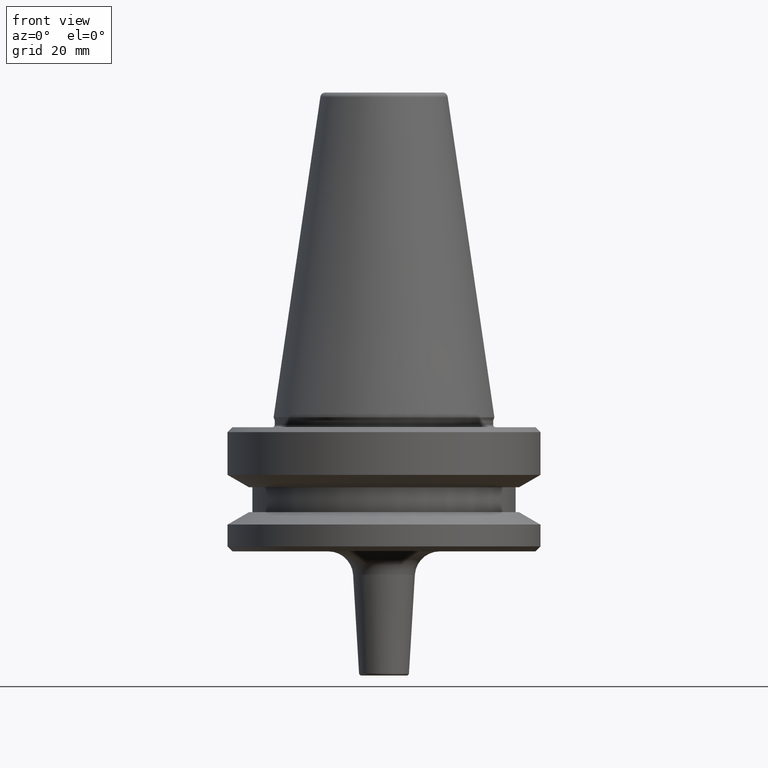
[diagram: clean part render]
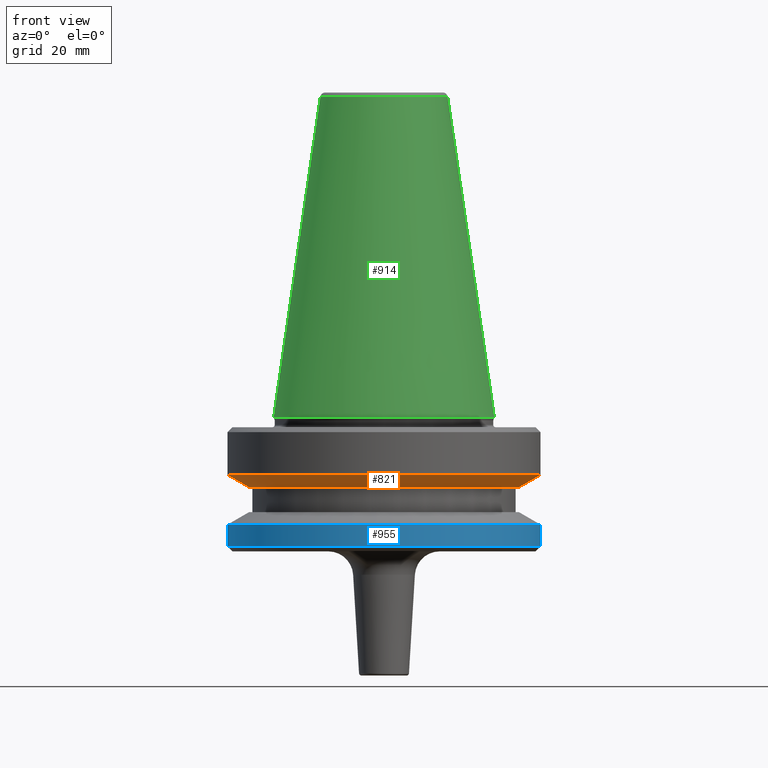
[diagram: same view with three faces highlighted in distinct colors, each labeled with its STEP entity id]
A machine part, front view with three faces highlighted in distinct colors.
Their STEP definitions:

[orange] entity #821 — the highlighted conical surface has half-angle 60 deg.
#3 = DIRECTION ( 'NONE',  ( -0.0000000000000000000, -0.0000000000000000000, 1.000000000000000000 ) ) ;
#22 = CARTESIAN_POINT ( 'NONE',  ( 0.0000000000000000000, 0.0000000000000000000, -76.99985799368391800 ) ) ;
#33 = AXIS2_PLACEMENT_3D ( 'NONE', #22, #614, #105 ) ;
#41 = ORIENTED_EDGE ( 'NONE', *, *, #916, .F. ) ;
#43 = DIRECTION ( 'NONE',  ( -0.8660254037844383700, 1.060575238724906500E-016, 0.5000000000000003300 ) ) ;
#89 = CONICAL_SURFACE ( 'NONE', #844, 31.50000000000008500, 1.047197551196597400 ) ;
#90 = VERTEX_POINT ( 'NONE', #812 ) ;
#103 = CARTESIAN_POINT ( 'NONE',  ( 27.16962701892322600, 0.0000000000000000000, -79.50000000000012800 ) ) ;
#105 = DIRECTION ( 'NONE',  ( 1.000000000000000000, 0.0000000000000000000, 0.0000000000000000000 ) ) ;
#176 = DIRECTION ( 'NONE',  ( 1.000000000000000000, 0.0000000000000000000, 0.0000000000000000000 ) ) ;
#181 = DIRECTION ( 'NONE',  ( 0.8660254037844383700, 0.0000000000000000000, 0.5000000000000003300 ) ) ;
#190 = EDGE_CURVE ( 'NONE', #536, #806, #229, .T. ) ;
#217 = EDGE_CURVE ( 'NONE', #287, #90, #1034, .T. ) ;
#229 = CIRCLE ( 'NONE', #444, 27.16962701892322600 ) ;
#239 = EDGE_CURVE ( 'NONE', #806, #90, #573, .T. ) ;
#272 = VECTOR ( 'NONE', #43, 1000.000000000000100 ) ;
#287 = VERTEX_POINT ( 'NONE', #434 ) ;
#322 = EDGE_LOOP ( 'NONE', ( #41, #795, #640, #891 ) ) ;
#357 = VECTOR ( 'NONE', #181, 1000.000000000000100 ) ;
#434 = CARTESIAN_POINT ( 'NONE',  ( -31.50000000000008500, 3.857637417314172900E-015, -76.99985799368391800 ) ) ;
#444 = AXIS2_PLACEMENT_3D ( 'NONE', #498, #3, #596 ) ;
#457 = CARTESIAN_POINT ( 'NONE',  ( -27.16962701892322600, 3.592478546794674900E-015, -79.50000000000012800 ) ) ;
#470 = FACE_OUTER_BOUND ( 'NONE', #322, .T. ) ;
#498 = CARTESIAN_POINT ( 'NONE',  ( 0.0000000000000000000, 0.0000000000000000000, -79.50000000000012800 ) ) ;
#536 = VERTEX_POINT ( 'NONE', #457 ) ;
#541 = CARTESIAN_POINT ( 'NONE',  ( -31.50000000000008500, 3.857637417314172900E-015, -76.99985799368391800 ) ) ;
#573 = LINE ( 'NONE', #673, #357 ) ;
#596 = DIRECTION ( 'NONE',  ( 1.000000000000000000, 0.0000000000000000000, 0.0000000000000000000 ) ) ;
#597 = CARTESIAN_POINT ( 'NONE',  ( 0.0000000000000000000, 0.0000000000000000000, -76.99985799368391800 ) ) ;
#614 = DIRECTION ( 'NONE',  ( -0.0000000000000000000, -0.0000000000000000000, 1.000000000000000000 ) ) ;
#640 = ORIENTED_EDGE ( 'NONE', *, *, #239, .T. ) ;
#667 = DIRECTION ( 'NONE',  ( -0.0000000000000000000, -0.0000000000000000000, 1.000000000000000000 ) ) ;
#673 = CARTESIAN_POINT ( 'NONE',  ( 31.50000000000008500, 0.0000000000000000000, -76.99985799368391800 ) ) ;
#795 = ORIENTED_EDGE ( 'NONE', *, *, #190, .T. ) ;
#806 = VERTEX_POINT ( 'NONE', #103 ) ;
#812 = CARTESIAN_POINT ( 'NONE',  ( 31.50000000000008500, 0.0000000000000000000, -76.99985799368391800 ) ) ;
#821 = ADVANCED_FACE ( 'NONE', ( #470 ), #89, .T. ) ;
#844 = AXIS2_PLACEMENT_3D ( 'NONE', #597, #667, #176 ) ;
#891 = ORIENTED_EDGE ( 'NONE', *, *, #217, .F. ) ;
#903 = LINE ( 'NONE', #541, #272 ) ;
#916 = EDGE_CURVE ( 'NONE', #536, #287, #903, .T. ) ;
#1034 = CIRCLE ( 'NONE', #33, 31.50000000000008500 ) ;

[blue] entity #955 — the highlighted cylindrical surface (partial cylindrical patch) has radius 31.5 mm, axis along (-0, -0, 1).
#5 = ORIENTED_EDGE ( 'NONE', *, *, #145, .F. ) ;
#36 = DIRECTION ( 'NONE',  ( 1.000000000000000000, 0.0000000000000000000, 0.0000000000000000000 ) ) ;
#59 = DIRECTION ( 'NONE',  ( 1.000000000000000000, 0.0000000000000000000, 0.0000000000000000000 ) ) ;
#84 = CIRCLE ( 'NONE', #251, 31.50000000000008500 ) ;
#86 = ORIENTED_EDGE ( 'NONE', *, *, #427, .F. ) ;
#108 = EDGE_CURVE ( 'NONE', #465, #175, #84, .T. ) ;
#134 = EDGE_LOOP ( 'NONE', ( #86, #479, #325, #5 ) ) ;
#145 = EDGE_CURVE ( 'NONE', #352, #981, #254, .T. ) ;
#175 = VERTEX_POINT ( 'NONE', #879 ) ;
#251 = AXIS2_PLACEMENT_3D ( 'NONE', #1030, #560, #59 ) ;
#254 = CIRCLE ( 'NONE', #576, 31.50000000000008500 ) ;
#325 = ORIENTED_EDGE ( 'NONE', *, *, #1055, .T. ) ;
#352 = VERTEX_POINT ( 'NONE', #1023 ) ;
#367 = LINE ( 'NONE', #1017, #551 ) ;
#384 = DIRECTION ( 'NONE',  ( 1.000000000000000000, 0.0000000000000000000, 0.0000000000000000000 ) ) ;
#387 = DIRECTION ( 'NONE',  ( -0.0000000000000000000, -0.0000000000000000000, 1.000000000000000000 ) ) ;
#388 = CARTESIAN_POINT ( 'NONE',  ( 0.0000000000000000000, 0.0000000000000000000, 6.357346922996331500 ) ) ;
#427 = EDGE_CURVE ( 'NONE', #465, #352, #867, .T. ) ;
#433 = CARTESIAN_POINT ( 'NONE',  ( 31.50000000000008500, 0.0000000000000000000, -87.00014200631733300 ) ) ;
#464 = FACE_OUTER_BOUND ( 'NONE', #134, .T. ) ;
#465 = VERTEX_POINT ( 'NONE', #532 ) ;
#479 = ORIENTED_EDGE ( 'NONE', *, *, #108, .T. ) ;
#532 = CARTESIAN_POINT ( 'NONE',  ( -31.50000000000008500, 3.857637417314172900E-015, -91.40000000000037500 ) ) ;
#533 = DIRECTION ( 'NONE',  ( -0.0000000000000000000, -0.0000000000000000000, 1.000000000000000000 ) ) ;
#551 = VECTOR ( 'NONE', #387, 1000.000000000000000 ) ;
#560 = DIRECTION ( 'NONE',  ( -0.0000000000000000000, -0.0000000000000000000, 1.000000000000000000 ) ) ;
#576 = AXIS2_PLACEMENT_3D ( 'NONE', #1008, #533, #36 ) ;
#659 = VECTOR ( 'NONE', #1051, 1000.000000000000000 ) ;
#732 = CYLINDRICAL_SURFACE ( 'NONE', #768, 31.50000000000008500 ) ;
#768 = AXIS2_PLACEMENT_3D ( 'NONE', #388, #1022, #384 ) ;
#867 = LINE ( 'NONE', #972, #659 ) ;
#879 = CARTESIAN_POINT ( 'NONE',  ( 31.50000000000008500, 0.0000000000000000000, -91.40000000000037500 ) ) ;
#955 = ADVANCED_FACE ( 'NONE', ( #464 ), #732, .T. ) ;
#972 = CARTESIAN_POINT ( 'NONE',  ( -31.50000000000008500, 3.857637417314172900E-015, 6.357346922996331500 ) ) ;
#981 = VERTEX_POINT ( 'NONE', #433 ) ;
#1008 = CARTESIAN_POINT ( 'NONE',  ( 0.0000000000000000000, 0.0000000000000000000, -87.00014200631733300 ) ) ;
#1017 = CARTESIAN_POINT ( 'NONE',  ( 31.50000000000008500, 0.0000000000000000000, 6.357346922996331500 ) ) ;
#1022 = DIRECTION ( 'NONE',  ( -0.0000000000000000000, -0.0000000000000000000, 1.000000000000000000 ) ) ;
#1023 = CARTESIAN_POINT ( 'NONE',  ( -31.50000000000008500, 3.857637417314172900E-015, -87.00014200631733300 ) ) ;
#1030 = CARTESIAN_POINT ( 'NONE',  ( 0.0000000000000000000, 0.0000000000000000000, -91.40000000000037500 ) ) ;
#1051 = DIRECTION ( 'NONE',  ( -0.0000000000000000000, -0.0000000000000000000, 1.000000000000000000 ) ) ;
#1055 = EDGE_CURVE ( 'NONE', #175, #981, #367, .T. ) ;

[green] entity #914 — the highlighted conical surface has half-angle 8.297 deg.
#17 = DIRECTION ( 'NONE',  ( 1.000000000000000000, 0.0000000000000000000, 0.0000000000000000000 ) ) ;
#27 = LINE ( 'NONE', #977, #1050 ) ;
#129 = CARTESIAN_POINT ( 'NONE',  ( -22.22499999999993700, 2.721777511104985000E-015, -65.40000000000057400 ) ) ;
#154 = ORIENTED_EDGE ( 'NONE', *, *, #343, .F. ) ;
#171 = CARTESIAN_POINT ( 'NONE',  ( 22.22499999999993700, 0.0000000000000000000, -65.40000000000057400 ) ) ;
#212 = CARTESIAN_POINT ( 'NONE',  ( 0.0000000000000000000, 0.0000000000000000000, -0.8556918111122247000 ) ) ;
#264 = VERTEX_POINT ( 'NONE', #358 ) ;
#279 = EDGE_CURVE ( 'NONE', #932, #455, #761, .T. ) ;
#291 = AXIS2_PLACEMENT_3D ( 'NONE', #212, #794, #306 ) ;
#295 = DIRECTION ( 'NONE',  ( 0.0000000000000000000, 0.0000000000000000000, -1.000000000000000000 ) ) ;
#296 = ORIENTED_EDGE ( 'NONE', *, *, #279, .T. ) ;
#306 = DIRECTION ( 'NONE',  ( 1.000000000000000000, 0.0000000000000000000, 0.0000000000000000000 ) ) ;
#335 = EDGE_CURVE ( 'NONE', #264, #932, #936, .T. ) ;
#343 = EDGE_CURVE ( 'NONE', #264, #785, #710, .T. ) ;
#358 = CARTESIAN_POINT ( 'NONE',  ( -12.81220206925736900, 0.0000000000000000000, -0.8556918111122247000 ) ) ;
#376 = EDGE_LOOP ( 'NONE', ( #426, #154, #781, #296 ) ) ;
#426 = ORIENTED_EDGE ( 'NONE', *, *, #431, .F. ) ;
#431 = EDGE_CURVE ( 'NONE', #785, #455, #27, .T. ) ;
#455 = VERTEX_POINT ( 'NONE', #171 ) ;
#486 = VECTOR ( 'NONE', #791, 1000.000000000000000 ) ;
#514 = DIRECTION ( 'NONE',  ( -0.0000000000000000000, -0.0000000000000000000, 1.000000000000000000 ) ) ;
#543 = CARTESIAN_POINT ( 'NONE',  ( -12.81220206925736900, 0.0000000000000000000, -0.8556918111122247000 ) ) ;
#583 = CARTESIAN_POINT ( 'NONE',  ( 0.0000000000000000000, 0.0000000000000000000, -0.8556918111122247000 ) ) ;
#710 = CIRCLE ( 'NONE', #291, 12.81220206925736900 ) ;
#761 = CIRCLE ( 'NONE', #954, 22.22499999999993700 ) ;
#781 = ORIENTED_EDGE ( 'NONE', *, *, #335, .T. ) ;
#785 = VERTEX_POINT ( 'NONE', #902 ) ;
#791 = DIRECTION ( 'NONE',  ( -0.1443081888881795900, 0.0000000000000000000, -0.9895327920891826600 ) ) ;
#794 = DIRECTION ( 'NONE',  ( -0.0000000000000000000, -0.0000000000000000000, 1.000000000000000000 ) ) ;
#803 = AXIS2_PLACEMENT_3D ( 'NONE', #583, #295, #857 ) ;
#829 = DIRECTION ( 'NONE',  ( 0.1443081888881795900, 1.767265616126607700E-017, -0.9895327920891826600 ) ) ;
#857 = DIRECTION ( 'NONE',  ( -1.000000000000000000, 0.0000000000000000000, 0.0000000000000000000 ) ) ;
#882 = CONICAL_SURFACE ( 'NONE', #803, 12.81220206925736900, 0.1448138077623198300 ) ;
#902 = CARTESIAN_POINT ( 'NONE',  ( 12.81220206925736900, 2.145409868259749100E-015, -0.8556918111122247000 ) ) ;
#914 = ADVANCED_FACE ( 'NONE', ( #957 ), #882, .T. ) ;
#932 = VERTEX_POINT ( 'NONE', #129 ) ;
#936 = LINE ( 'NONE', #543, #486 ) ;
#954 = AXIS2_PLACEMENT_3D ( 'NONE', #993, #514, #17 ) ;
#957 = FACE_OUTER_BOUND ( 'NONE', #376, .T. ) ;
#977 = CARTESIAN_POINT ( 'NONE',  ( 12.81220206925736900, 1.569042225414513200E-015, -0.8556918111122247000 ) ) ;
#993 = CARTESIAN_POINT ( 'NONE',  ( 0.0000000000000000000, 0.0000000000000000000, -65.40000000000057400 ) ) ;
#1050 = VECTOR ( 'NONE', #829, 1000.000000000000000 ) ;